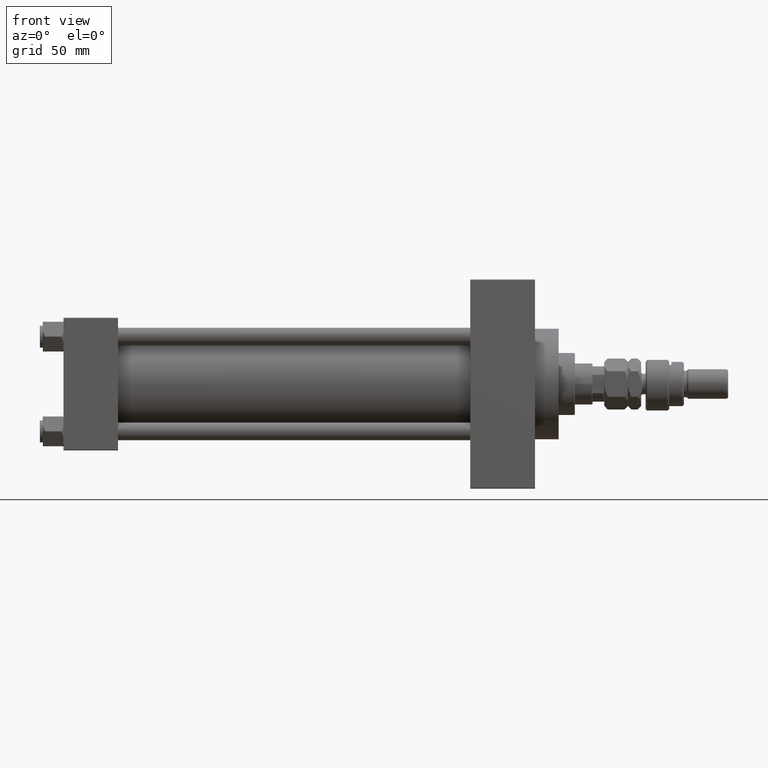
[diagram: clean part render]
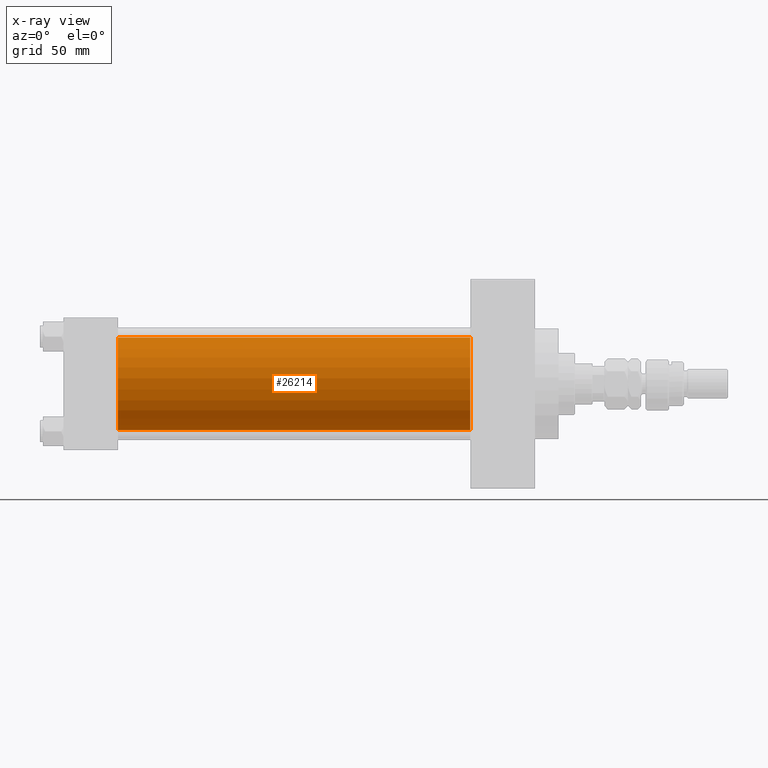
[diagram: x-ray — body ghosted, one internal face saturated and labeled with its STEP entity id]
A machine part, front view, then the same camera in x-ray: the body is ghosted and one INTERNAL B-rep face — a face not visible from any outside direction — is saturated and labeled: STEP entity #26214.
In plain terms, the highlighted cylindrical surface (partial cylindrical patch) has radius 31.5 mm, axis along (-1, -0, -0).
Its self-contained STEP definition (entity closure, byte-faithful):
#429 = LINE ( 'NONE', #32313, #25040 ) ;
#695 = EDGE_CURVE ( 'NONE', #13498, #38813, #41787, .T. ) ;
#4604 = AXIS2_PLACEMENT_3D ( 'NONE', #27046, #23247, #35158 ) ;
#5461 = AXIS2_PLACEMENT_3D ( 'NONE', #31192, #7926, #8671 ) ;
#6259 = ORIENTED_EDGE ( 'NONE', *, *, #26326, .F. ) ;
#7780 = ORIENTED_EDGE ( 'NONE', *, *, #39728, .T. ) ;
#7926 = DIRECTION ( 'NONE',  ( -1.000000000000000000, -0.000000000000000000, -0.000000000000000000 ) ) ;
#8671 = DIRECTION ( 'NONE',  ( 0.000000000000000000, 0.000000000000000000, 1.000000000000000000 ) ) ;
#8955 = CARTESIAN_POINT ( 'NONE',  ( 275.9999999999999432, -2.602085213965210642E-15, 31.50000000000000000 ) ) ;
#9927 = LINE ( 'NONE', #13210, #45861 ) ;
#10391 = DIRECTION ( 'NONE',  ( 0.000000000000000000, 0.000000000000000000, -1.000000000000000000 ) ) ;
#11145 = DIRECTION ( 'NONE',  ( 1.000000000000000000, 0.000000000000000000, 0.000000000000000000 ) ) ;
#12824 = DIRECTION ( 'NONE',  ( -1.000000000000000000, -0.000000000000000000, -0.000000000000000000 ) ) ;
#13210 = CARTESIAN_POINT ( 'NONE',  ( 275.9999999999999432, -2.602085213965210642E-15, 31.50000000000000000 ) ) ;
#13498 = VERTEX_POINT ( 'NONE', #20360 ) ;
#14855 = VERTEX_POINT ( 'NONE', #32734 ) ;
#18469 = CARTESIAN_POINT ( 'NONE',  ( 275.9999999999999432, -2.602085213965210642E-15, 0.000000000000000000 ) ) ;
#20271 = CARTESIAN_POINT ( 'NONE',  ( 37.00000000000000000, 1.255552203348951061E-15, -31.50000000000000000 ) ) ;
#20309 = CIRCLE ( 'NONE', #25979, 31.50000000000000000 ) ;
#20360 = CARTESIAN_POINT ( 'NONE',  ( 37.00000000000000000, -2.602085213965210642E-15, 31.50000000000000000 ) ) ;
#23247 = DIRECTION ( 'NONE',  ( 1.000000000000000000, 0.000000000000000000, 0.000000000000000000 ) ) ;
#25040 = VECTOR ( 'NONE', #12824, 1000.000000000000000 ) ;
#25979 = AXIS2_PLACEMENT_3D ( 'NONE', #18469, #11145, #10391 ) ;
#26214 = ADVANCED_FACE ( 'NONE', ( #35493 ), #42611, .F. ) ;
#26326 = EDGE_CURVE ( 'NONE', #49998, #13498, #9927, .T. ) ;
#27046 = CARTESIAN_POINT ( 'NONE',  ( 37.00000000000000000, -2.602085213965210642E-15, 0.000000000000000000 ) ) ;
#28691 = ORIENTED_EDGE ( 'NONE', *, *, #43329, .T. ) ;
#31192 = CARTESIAN_POINT ( 'NONE',  ( 275.9999999999999432, -2.602085213965210642E-15, 0.000000000000000000 ) ) ;
#32313 = CARTESIAN_POINT ( 'NONE',  ( 275.9999999999999432, 1.255552203348951061E-15, -31.50000000000000000 ) ) ;
#32734 = CARTESIAN_POINT ( 'NONE',  ( 275.9999999999999432, 1.255552203348951061E-15, -31.50000000000000000 ) ) ;
#35158 = DIRECTION ( 'NONE',  ( 0.000000000000000000, 0.000000000000000000, -1.000000000000000000 ) ) ;
#35493 = FACE_OUTER_BOUND ( 'NONE', #41133, .T. ) ;
#38798 = ORIENTED_EDGE ( 'NONE', *, *, #695, .F. ) ;
#38813 = VERTEX_POINT ( 'NONE', #20271 ) ;
#39728 = EDGE_CURVE ( 'NONE', #49998, #14855, #20309, .T. ) ;
#41133 = EDGE_LOOP ( 'NONE', ( #7780, #28691, #38798, #6259 ) ) ;
#41787 = CIRCLE ( 'NONE', #4604, 31.50000000000000000 ) ;
#42611 = CYLINDRICAL_SURFACE ( 'NONE', #5461, 31.50000000000000000 ) ;
#43329 = EDGE_CURVE ( 'NONE', #14855, #38813, #429, .T. ) ;
#45861 = VECTOR ( 'NONE', #48642, 1000.000000000000000 ) ;
#48642 = DIRECTION ( 'NONE',  ( -1.000000000000000000, -0.000000000000000000, -0.000000000000000000 ) ) ;
#49998 = VERTEX_POINT ( 'NONE', #8955 ) ;